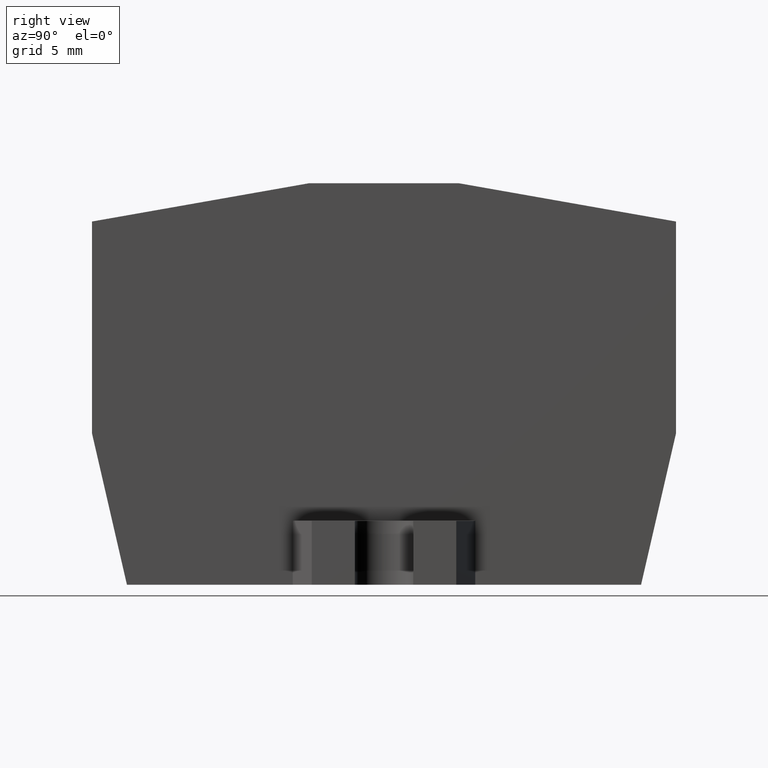
[diagram: clean part render]
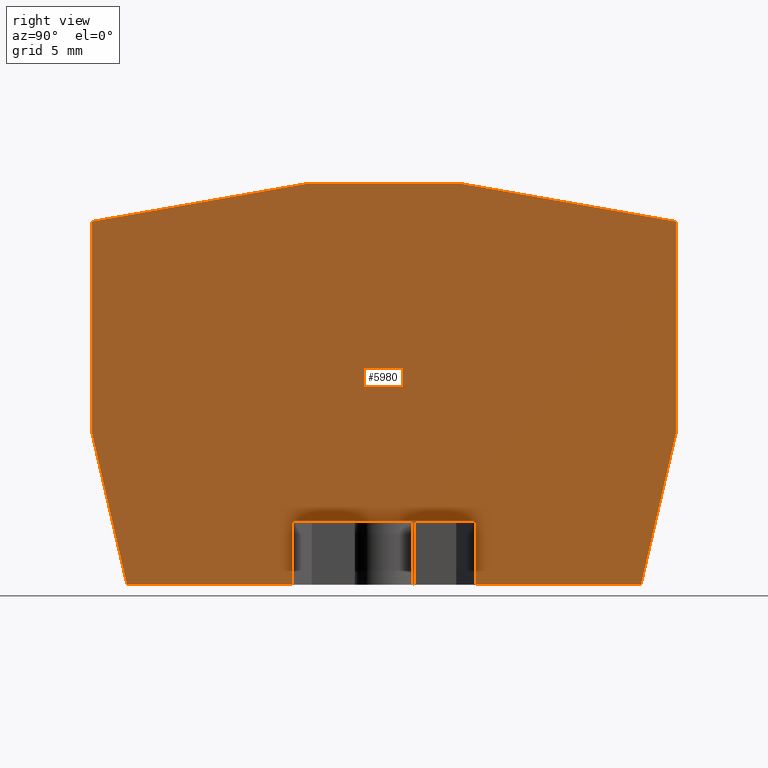
[diagram: same view with one face highlighted and labeled with its STEP entity id]
A machine part, right view. The second image highlights one B-rep face of the part: STEP entity #5980.
In plain terms, the highlighted planar face has unit normal (1, 0, 0).
Its self-contained STEP definition (entity closure, byte-faithful):
#100=CARTESIAN_POINT('',(-4.06644704301012,122.619499420518,
7.8277564886281));
#110=VERTEX_POINT('',#100);
#160=CARTESIAN_POINT('',(-4.0664470430101,122.790993259522,
7.8277564886281));
#170=DIRECTION('',(-2.54170139600954E-15,-1.,0.));
#180=VECTOR('',#170,1.);
#190=LINE('',#160,#180);
#200=CARTESIAN_POINT('',(-4.06644704301013,111.01779049095,
7.8277564886281));
#210=VERTEX_POINT('',#200);
#220=EDGE_CURVE('',#110,#210,#190,.T.);
#620=CARTESIAN_POINT('',(-6.78450506994527,122.790993259522,
7.8277564886281));
#630=DIRECTION('',(0.224951054343896,-0.974370064785228,0.));
#640=VECTOR('',#630,1.);
#650=LINE('',#620,#640);
#660=CARTESIAN_POINT('',(-2.1502410566677,102.71779049095,
7.8277564886281));
#670=VERTEX_POINT('',#660);
#680=EDGE_CURVE('',#210,#670,#650,.T.);
#1520=CARTESIAN_POINT('',(27.9335529569937,111.01779049095,
7.8277564886281));
#1530=VERTEX_POINT('',#1520);
#1560=CARTESIAN_POINT('',(27.9335529569937,122.790993259522,
7.8277564886281));
#1570=DIRECTION('',(0.,1.,0.));
#1580=VECTOR('',#1570,1.);
#1590=LINE('',#1560,#1580);
#1600=CARTESIAN_POINT('',(27.9335529569937,122.619499420518,
7.8277564886281));
#1610=VERTEX_POINT('',#1600);
#1620=EDGE_CURVE('',#1530,#1610,#1590,.T.);
#1990=CARTESIAN_POINT('',(16.9335529569918,106.21779049095,
7.8277564886281));
#2000=VERTEX_POINT('',#1990);
#2030=CARTESIAN_POINT('',(16.9335529569918,103.81779049095,
7.82775648862809));
#2040=DIRECTION('',(0.,1.,0.));
#2050=VECTOR('',#2040,1.);
#2060=LINE('',#2030,#2050);
#2070=CARTESIAN_POINT('',(16.9335529569918,102.71779049095,
7.8277564886281));
#2080=VERTEX_POINT('',#2070);
#2090=EDGE_CURVE('',#2080,#2000,#2060,.T.);
#2360=CARTESIAN_POINT('',(6.93355295699178,102.71779049095,
7.8277564886281));
#2370=VERTEX_POINT('',#2360);
#2420=CARTESIAN_POINT('',(6.93355295699178,103.81779049095,
7.82775648862809));
#2430=DIRECTION('',(0.,1.,0.));
#2440=VECTOR('',#2430,1.);
#2450=LINE('',#2420,#2440);
#2460=CARTESIAN_POINT('',(6.93355295699178,106.21779049095,
7.8277564886281));
#2470=VERTEX_POINT('',#2460);
#2480=EDGE_CURVE('',#2370,#2470,#2450,.T.);
#2800=CARTESIAN_POINT('',(20.073056853767,102.71779049095,
7.8277564886281));
#2810=DIRECTION('',(1.,0.,0.));
#2820=VECTOR('',#2810,1.);
#2830=LINE('',#2800,#2820);
#2840=EDGE_CURVE('',#670,#2370,#2830,.T.);
#3180=CARTESIAN_POINT('',(20.073056853767,102.71779049095,
7.8277564886281));
#3190=DIRECTION('',(1.,0.,0.));
#3200=VECTOR('',#3190,1.);
#3210=LINE('',#3180,#3200);
#3220=CARTESIAN_POINT('',(26.0173469706513,102.71779049095,
7.8277564886281));
#3230=VERTEX_POINT('',#3220);
#3240=EDGE_CURVE('',#2080,#3230,#3210,.T.);
#3560=CARTESIAN_POINT('',(30.6516109839287,122.790993259522,
7.8277564886281));
#3570=DIRECTION('',(0.224951054343888,0.97437006478523,0.));
#3580=VECTOR('',#3570,1.);
#3590=LINE('',#3560,#3580);
#3600=EDGE_CURVE('',#3230,#1530,#3590,.T.);
#4730=CARTESIAN_POINT('',(20.073056853767,106.21779049095,
7.8277564886281));
#4740=DIRECTION('',(-1.,0.,0.));
#4750=VECTOR('',#4740,1.);
#4760=LINE('',#4730,#4750);
#4770=EDGE_CURVE('',#2000,#2470,#4760,.T.);
#5600=CARTESIAN_POINT('',(2.848841,111.340026,7.8277564886281));
#5610=DIRECTION('',(0.,0.,1.));
#5620=DIRECTION('',(1.,0.,0.));
#5630=AXIS2_PLACEMENT_3D('',#5600,#5610,#5620);
#5640=PLANE('',#5630);
#5650=ORIENTED_EDGE('',*,*,#680,.T.);
#5660=ORIENTED_EDGE('',*,*,#220,.T.);
#5670=CARTESIAN_POINT('',(20.073056853767,126.875945258438,
7.8277564886281));
#5680=DIRECTION('',(-0.984807753012205,-0.173648177666947,0.));
#5690=VECTOR('',#5680,1.);
#5700=LINE('',#5670,#5690);
#5710=CARTESIAN_POINT('',(7.83355295699197,124.71779049095,
7.8277564886281));
#5720=VERTEX_POINT('',#5710);
#5730=EDGE_CURVE('',#5720,#110,#5700,.T.);
#5740=ORIENTED_EDGE('',*,*,#5730,.T.);
#5750=CARTESIAN_POINT('',(20.073056853767,124.71779049095,
7.8277564886281));
#5760=DIRECTION('',(-1.,0.,0.));
#5770=VECTOR('',#5760,1.);
#5780=LINE('',#5750,#5770);
#5790=CARTESIAN_POINT('',(16.0335529569916,124.71779049095,
7.8277564886281));
#5800=VERTEX_POINT('',#5790);
#5810=EDGE_CURVE('',#5800,#5720,#5780,.T.);
#5820=ORIENTED_EDGE('',*,*,#5810,.T.);
#5830=CARTESIAN_POINT('',(20.073056853767,124.005516965271,
7.8277564886281));
#5840=DIRECTION('',(-0.984807753012205,0.173648177666947,0.));
#5850=VECTOR('',#5840,1.);
#5860=LINE('',#5830,#5850);
#5870=EDGE_CURVE('',#1610,#5800,#5860,.T.);
#5880=ORIENTED_EDGE('',*,*,#5870,.T.);
#5890=ORIENTED_EDGE('',*,*,#1620,.T.);
#5900=ORIENTED_EDGE('',*,*,#3600,.T.);
#5910=ORIENTED_EDGE('',*,*,#3240,.T.);
#5920=ORIENTED_EDGE('',*,*,#2090,.F.);
#5930=ORIENTED_EDGE('',*,*,#4770,.F.);
#5940=ORIENTED_EDGE('',*,*,#2480,.T.);
#5950=ORIENTED_EDGE('',*,*,#2840,.T.);
#5960=EDGE_LOOP('',(#5950,#5940,#5930,#5920,#5910,#5900,#5890,#5880,
#5820,#5740,#5660,#5650));
#5970=FACE_OUTER_BOUND('',#5960,.T.);
#5980=ADVANCED_FACE('',(#5970),#5640,.T.);